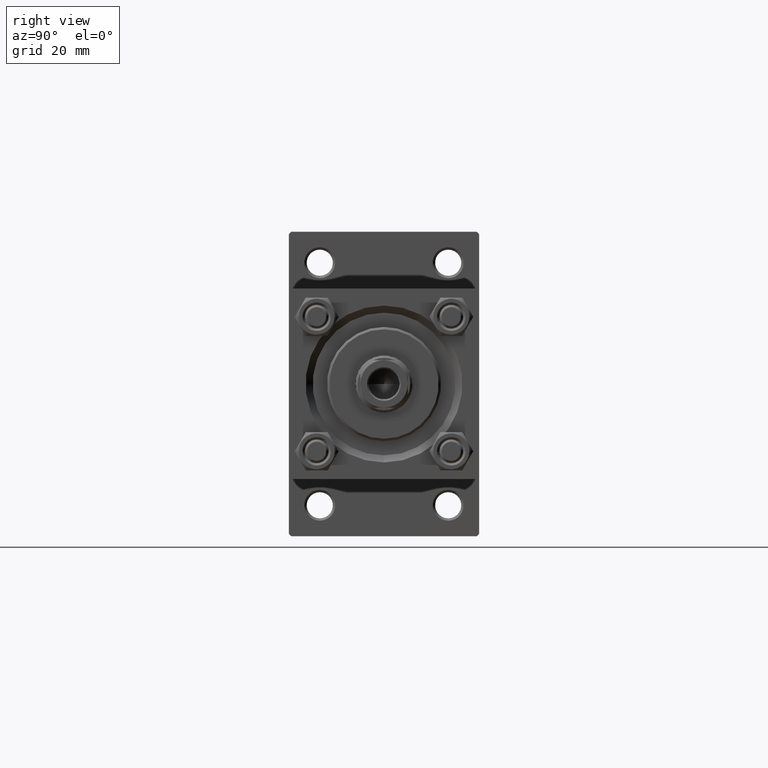
[diagram: clean part render]
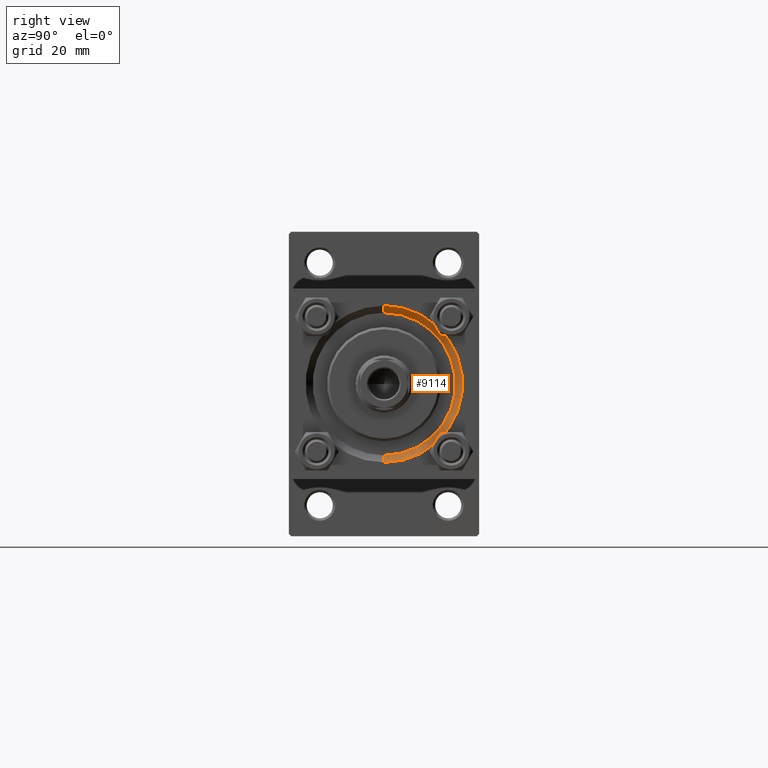
[diagram: same view with one face highlighted and labeled with its STEP entity id]
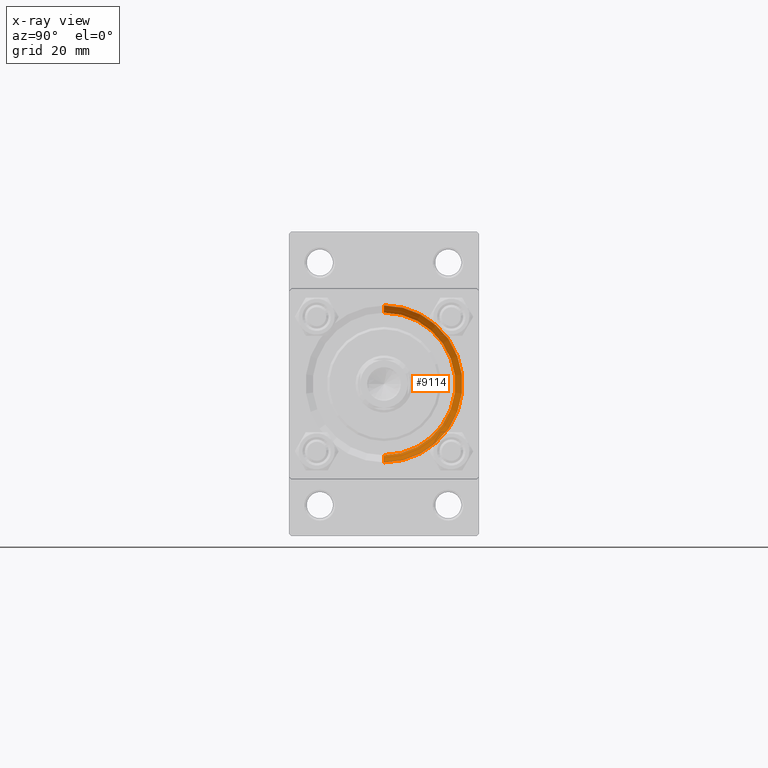
[diagram: x-ray of the same camera — body ghosted, the highlighted face saturated]
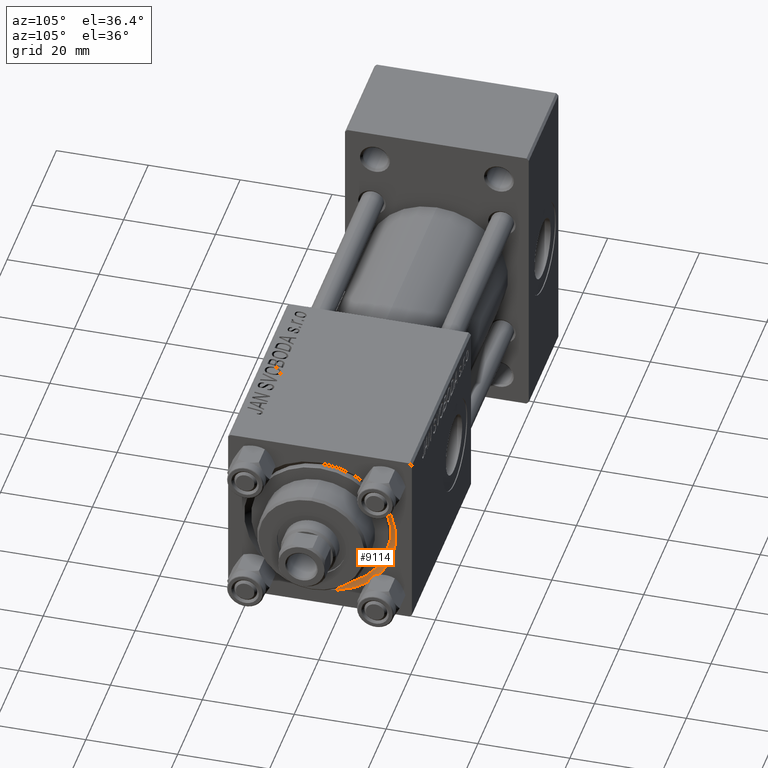
[diagram: same view with one face highlighted and labeled with its STEP entity id]
A machine part, right view. The second image highlights one B-rep face of the part: STEP entity #9114.
The next image is the same camera in x-ray: the body ghosted, the highlighted face saturated — about 0% of this face is hidden behind the body in this view.
A second angle (auxiliary view) of the same face is appended — the face is thin or edge-on in the first view.
In plain terms, the highlighted conical surface has half-angle 45 deg.
Its self-contained STEP definition (entity closure, byte-faithful):
#2827 = VERTEX_POINT ( 'NONE', #21607 ) ;
#3415 = DIRECTION ( 'NONE',  ( 0.000000000000000000, 0.000000000000000000, 1.000000000000000000 ) ) ;
#3857 = CARTESIAN_POINT ( 'NONE',  ( 117.5000000000000142, 0.000000000000000000, -15.00000000000000000 ) ) ;
#5221 = CARTESIAN_POINT ( 'NONE',  ( 117.5000000000000142, 1.836970198721029589E-15, 15.00000000000000000 ) ) ;
#5704 = CARTESIAN_POINT ( 'NONE',  ( 119.0000000000000142, 0.000000000000000000, 0.000000000000000000 ) ) ;
#9114 = ADVANCED_FACE ( 'NONE', ( #25255 ), #25457, .F. ) ;
#9121 = DIRECTION ( 'NONE',  ( 0.000000000000000000, 0.000000000000000000, -1.000000000000000000 ) ) ;
#9500 = EDGE_CURVE ( 'NONE', #2827, #37776, #31901, .T. ) ;
#9880 = CARTESIAN_POINT ( 'NONE',  ( 117.5000000000000142, 0.000000000000000000, 0.000000000000000000 ) ) ;
#11400 = EDGE_LOOP ( 'NONE', ( #36046, #12187, #43558, #21723 ) ) ;
#12187 = ORIENTED_EDGE ( 'NONE', *, *, #38457, .F. ) ;
#16369 = CARTESIAN_POINT ( 'NONE',  ( 117.5000000000000142, 1.836970198721029589E-15, 15.00000000000000000 ) ) ;
#17452 = DIRECTION ( 'NONE',  ( 1.000000000000000000, 0.000000000000000000, 0.000000000000000000 ) ) ;
#18575 = DIRECTION ( 'NONE',  ( 1.000000000000000000, 0.000000000000000000, 0.000000000000000000 ) ) ;
#19801 = AXIS2_PLACEMENT_3D ( 'NONE', #5704, #22097, #36493 ) ;
#21607 = CARTESIAN_POINT ( 'NONE',  ( 119.0000000000000142, 2.020667218593131128E-15, 16.49999999999998579 ) ) ;
#21723 = ORIENTED_EDGE ( 'NONE', *, *, #9500, .F. ) ;
#22097 = DIRECTION ( 'NONE',  ( -1.000000000000000000, -0.000000000000000000, -0.000000000000000000 ) ) ;
#22785 = DIRECTION ( 'NONE',  ( 0.7071067811865507924, 0.000000000000000000, -0.7071067811865441310 ) ) ;
#22834 = CARTESIAN_POINT ( 'NONE',  ( 117.5000000000000142, 0.000000000000000000, 0.000000000000000000 ) ) ;
#23274 = LINE ( 'NONE', #3857, #33085 ) ;
#24314 = EDGE_CURVE ( 'NONE', #36218, #37776, #23274, .T. ) ;
#25232 = CIRCLE ( 'NONE', #41370, 15.00000000000000000 ) ;
#25255 = FACE_OUTER_BOUND ( 'NONE', #11400, .T. ) ;
#25457 = CONICAL_SURFACE ( 'NONE', #36745, 15.00000000000000000, 0.7853981633974437271 ) ;
#30050 = CARTESIAN_POINT ( 'NONE',  ( 119.0000000000000142, 0.000000000000000000, -16.49999999999998579 ) ) ;
#30736 = EDGE_CURVE ( 'NONE', #46281, #2827, #31976, .T. ) ;
#31901 = CIRCLE ( 'NONE', #19801, 16.49999999999998579 ) ;
#31976 = LINE ( 'NONE', #5221, #45256 ) ;
#32219 = DIRECTION ( 'NONE',  ( 0.7071067811865507924, 8.659560562354892183E-17, 0.7071067811865441310 ) ) ;
#33085 = VECTOR ( 'NONE', #22785, 1000.000000000000114 ) ;
#36046 = ORIENTED_EDGE ( 'NONE', *, *, #30736, .F. ) ;
#36218 = VERTEX_POINT ( 'NONE', #43833 ) ;
#36493 = DIRECTION ( 'NONE',  ( 0.000000000000000000, 0.000000000000000000, 1.000000000000000000 ) ) ;
#36745 = AXIS2_PLACEMENT_3D ( 'NONE', #9880, #17452, #9121 ) ;
#37776 = VERTEX_POINT ( 'NONE', #30050 ) ;
#38457 = EDGE_CURVE ( 'NONE', #36218, #46281, #25232, .T. ) ;
#41370 = AXIS2_PLACEMENT_3D ( 'NONE', #22834, #18575, #3415 ) ;
#43558 = ORIENTED_EDGE ( 'NONE', *, *, #24314, .T. ) ;
#43833 = CARTESIAN_POINT ( 'NONE',  ( 117.5000000000000142, 0.000000000000000000, -15.00000000000000000 ) ) ;
#45256 = VECTOR ( 'NONE', #32219, 1000.000000000000114 ) ;
#46281 = VERTEX_POINT ( 'NONE', #16369 ) ;